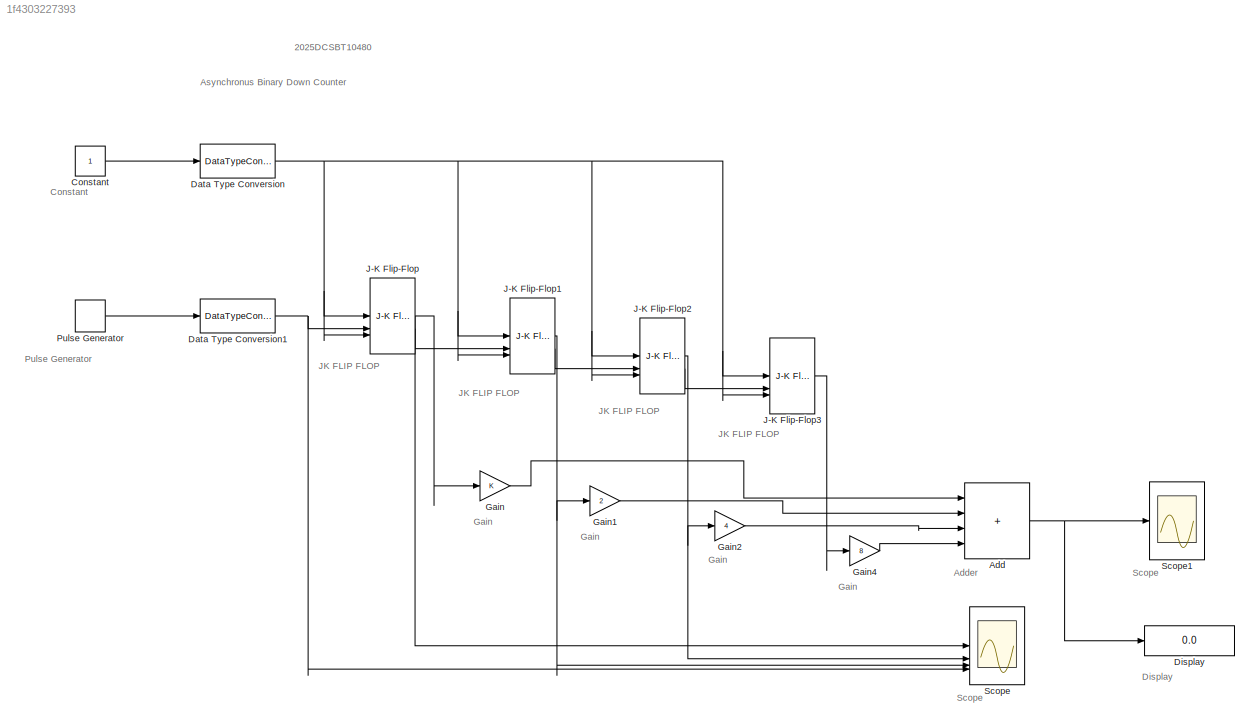
MODEL slx_1f4303227393
KIND model
CONFIG AbsTol = auto
CONFIG EnableMultiTasking = off
CONFIG FixedStep = auto
CONFIG MaxStep = auto
CONFIG MinStep = auto
CONFIG RelTol = 1e-3
CONFIG SampleTimeConstraint = Unconstrained
CONFIG SolverName = VariableStepAuto
CONFIG StartTime = 0.0
CONFIG StopTime = 10.0
BLOCK [Sum] Add
  IconShape = rectangular
  Inputs = ++++
BLOCK [Constant] Constant
BLOCK [DataTypeConversion] Data Type Conversion
  RndMeth = Floor
  SaturateOnIntegerOverflow = off
BLOCK [DataTypeConversion] Data Type Conversion1
  RndMeth = Floor
  SaturateOnIntegerOverflow = off
BLOCK [Display] Display
  Decimation = 1
BLOCK [Gain] Gain
BLOCK [Gain] Gain1
  Gain = 2
BLOCK [Gain] Gain2
  Gain = 4
BLOCK [Gain] Gain4
  Gain = 8
BLOCK [Reference] J-K Flip-Flop  REF=simulink_extras/Flip Flops/J-K
Flip-Flop
  SourceBlock = simulink_extras/Flip Flops/J-K\nFlip-Flop
  SourceType = JKFlipFlop
BLOCK [Reference] J-K Flip-Flop1  REF=simulink_extras/Flip Flops/J-K
Flip-Flop
  SourceBlock = simulink_extras/Flip Flops/J-K\nFlip-Flop
  SourceType = JKFlipFlop
BLOCK [Reference] J-K Flip-Flop2  REF=simulink_extras/Flip Flops/J-K
Flip-Flop
  SourceBlock = simulink_extras/Flip Flops/J-K\nFlip-Flop
  SourceType = JKFlipFlop
BLOCK [Reference] J-K Flip-Flop3  REF=simulink_extras/Flip Flops/J-K
Flip-Flop
  SourceBlock = simulink_extras/Flip Flops/J-K\nFlip-Flop
  SourceType = JKFlipFlop
BLOCK [DiscretePulseGenerator] Pulse Generator
  Period = 1
  PulseType = Time based
  PulseWidth = 50
BLOCK [Scope] Scope
  ActiveDisplayYMaximum = 1
  ActiveDisplayYMinimum = -1
  Floating = off
  GraphicalSettings = {"Style":{"BackgroundColor":[0.12941176470588237,0.12941176470588237,0.12941176470588237],"AxesColor":[0.07058823529411765,0.07058823529411765,0.07058823529411765],"LabelsColor":[0.8509803921568627,0.8509803921568627,0.8509803921568627],"PreserveColors":false,"Visible":[true,true,true,true],"LineStyle":["-","-","-","-"],"LineWidth":[1.5,1.5,1.5,1.5],"BarWidth":[0.9,0.9,0.9,0.9],"LineColor":["auto"...<+3116ch>
  LayoutDimensionsString = [4, 1]
  MultipleDisplayCache = [{"MaxYLimMag":1,"MaxYLimReal":1,"MinYLimMag":0,"MinYLimReal":-1,"PlotAsMagnitudePhase":false,"ShowGrid":true,"ShowLegend":false,"Title":"%<SignalLabel>","YLabel":""},{"MaxYLimMag":1,"MaxYLimReal":1,"MinYLimMag":0,"MinYLimReal":-1,"PlotAsMagnitudePhase":false,"ShowGrid":true,"ShowLegend":false,"Title":"%<SignalLabel>","YLabel":""},{"MaxYLimMag":1,"MaxYLimReal":1,"MinYLimMag":0,"MinYLimReal":-1,"Pl...<+265ch>
  NumInputPorts = 4
  ScopeFrameLocation = window
  WasSavedAsWebScope = on
  WindowPosition = [1.000000,1.000000,1920.000000,1057.000000,]
BLOCK [Scope] Scope1
  ActiveDisplayYMaximum = 8.62764207605834
  ActiveDisplayYMinimum = 2.3034831137686975
  DataLoggingVariableName = ScopeData1
  DisplayFullPath = on
  Floating = off
  GraphicalSettings = {"Style":{"BackgroundColor":[0.12941176470588237,0.12941176470588237,0.12941176470588237],"AxesColor":[0.07058823529411765,0.07058823529411765,0.07058823529411765],"LabelsColor":[0.8509803921568627,0.8509803921568627,0.8509803921568627],"PreserveColors":false,"Visible":[true],"LineStyle":["-"],"LineWidth":[1.5],"BarWidth":[0.9],"LineColor":["auto"],"LineFaceAlpha":[1],"LineEdgeAlpha":[1],"Marker":...<+1960ch>
  MultipleDisplayCache = [{"MaxYLimMag":7.875,"MaxYLimReal":8.62764207605834,"MinYLimMag":0,"MinYLimReal":2.3034831137686975,"PlotAsMagnitudePhase":false,"ShowGrid":true,"ShowLegend":false,"Title":"%<SignalLabel>","YLabel":""}]
  NumInputPorts = 1
  OpenAtSimulationStart = on
  ScopeFrameLocation = window
  Visible = on
  WasSavedAsWebScope = on
  WindowPosition = [0.000000,12.000000,1920.000000,1057.000000,]
ANNOTATION (root): Gain
ANNOTATION (root): 2025DCSBT10480
ANNOTATION (root): Asynchronus Binary Down Counter
ANNOTATION (root): Adder
ANNOTATION (root): Constant
ANNOTATION (root): Display
ANNOTATION (root): JK FLIP FLOP
ANNOTATION (root): Pulse Generator
ANNOTATION (root): Scope
NET Add:1 -> Display:1, Scope1:1
LINE Constant:1 -> Data Type Conversion:1
NET Data Type Conversion1:1 -> J-K Flip-Flop:2, Scope:4
NET Data Type Conversion:1 -> J-K Flip-Flop1:1, J-K Flip-Flop1:3, J-K Flip-Flop2:1, J-K Flip-Flop2:3, J-K Flip-Flop3:1, J-K Flip-Flop3:3, J-K Flip-Flop:1, J-K Flip-Flop:3
LINE Gain1:1 -> Add:2
LINE Gain2:1 -> Add:3
LINE Gain4:1 -> Add:4
LINE Gain:1 -> Add:1
NET J-K Flip-Flop1:1 -> Gain1:1, Scope:3
LINE J-K Flip-Flop1:2 -> J-K Flip-Flop2:2
NET J-K Flip-Flop2:1 -> Gain2:1, Scope:2
LINE J-K Flip-Flop2:2 -> J-K Flip-Flop3:2
LINE J-K Flip-Flop3:1 -> Gain4:1
NET J-K Flip-Flop:1 -> Gain:1, Scope:1
LINE J-K Flip-Flop:2 -> J-K Flip-Flop1:2
LINE Pulse Generator:1 -> Data Type Conversion1:1
note: NET lines group one-source signal fan-out (src -> all destinations, sorted); 1:1 wires keep LINE
